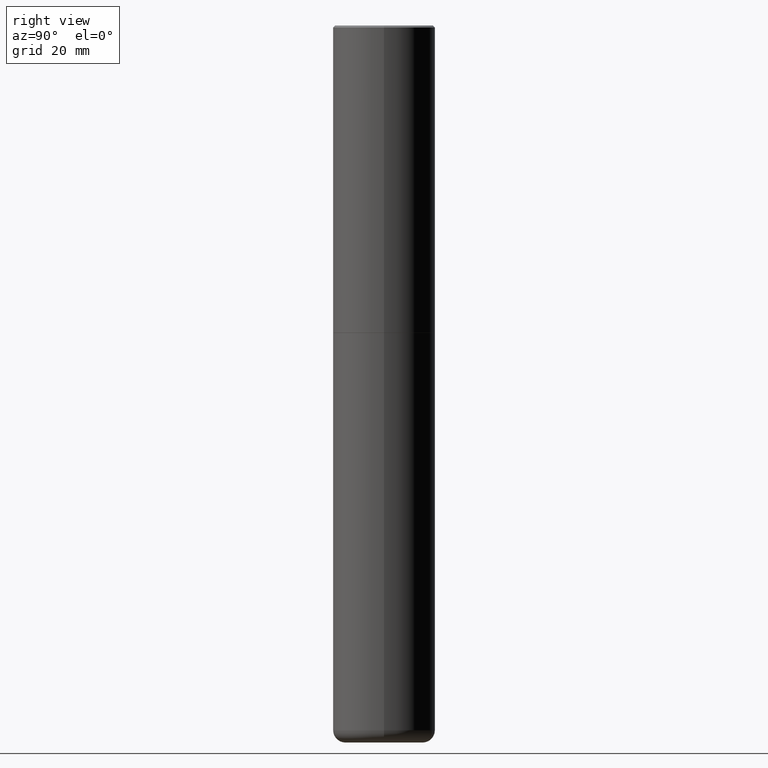
[diagram: clean part render]
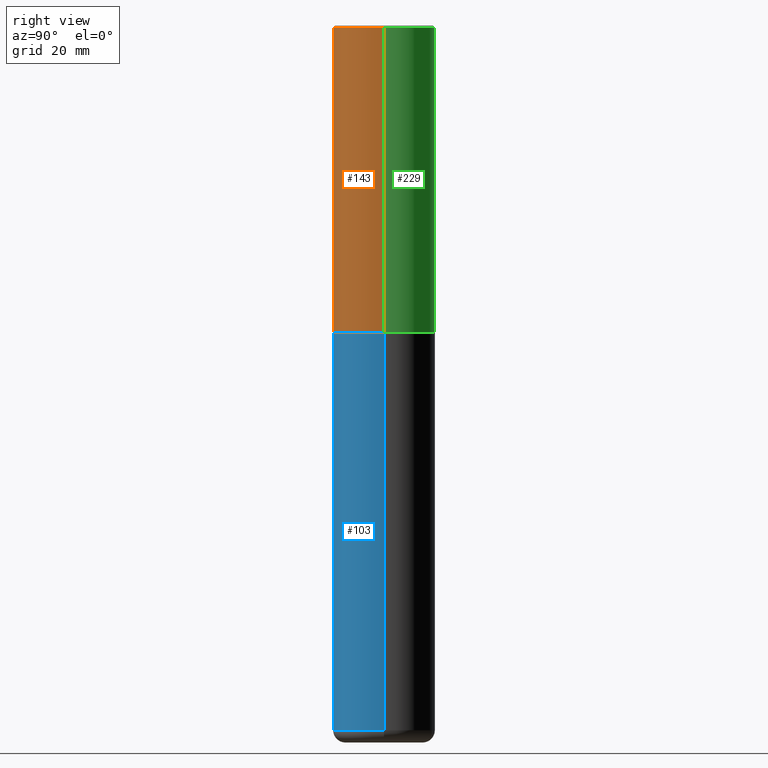
[diagram: same view with three faces highlighted in distinct colors, each labeled with its STEP entity id]
A machine part, right view with three faces highlighted in distinct colors.
Their STEP definitions:

[orange] entity #143 — the highlighted cylindrical surface (partial cylindrical patch) has radius 12.7 mm, axis along (-0, 0, 1).
#3 = FACE_OUTER_BOUND ( 'NONE', #13, .T. ) ;
#13 = EDGE_LOOP ( 'NONE', ( #282, #311, #377, #196 ) ) ;
#23 = CARTESIAN_POINT ( 'NONE',  ( -0.5000000000000001110, 3.552713678800501718E-15, -2.459467545127453732E-29 ) ) ;
#37 = CARTESIAN_POINT ( 'NONE',  ( 0.5000000000000000000, -3.500078625662629079E-15, -0.02000000000000010797 ) ) ;
#43 = DIRECTION ( 'NONE',  ( -2.445468806185136597E-29, 3.491481338843145583E-15, 1.000000000000000000 ) ) ;
#58 = CARTESIAN_POINT ( 'NONE',  ( -0.5000000000000000000, 3.421651712066270057E-15, -0.02000000000000010797 ) ) ;
#72 = CARTESIAN_POINT ( 'NONE',  ( 4.890937612370299433E-31, -6.982962677686328587E-17, -0.02000000000000010797 ) ) ;
#80 = EDGE_CURVE ( 'NONE', #86, #193, #405, .T. ) ;
#86 = VERTEX_POINT ( 'NONE', #146 ) ;
#100 = DIRECTION ( 'NONE',  ( -2.445468806185136597E-29, 3.491481338843145583E-15, 1.000000000000000000 ) ) ;
#109 = EDGE_CURVE ( 'NONE', #245, #268, #370, .T. ) ;
#115 = DIRECTION ( 'NONE',  ( -2.445468806185136877E-29, 3.491481338843145188E-15, 1.000000000000000000 ) ) ;
#141 = CYLINDRICAL_SURFACE ( 'NONE', #328, 0.5000000000000001110 ) ;
#143 = ADVANCED_FACE ( 'NONE', ( #3 ), #141, .T. ) ;
#146 = CARTESIAN_POINT ( 'NONE',  ( 0.5000000000000003331, -1.396243387403372828E-14, -2.999000000000000110 ) ) ;
#150 = AXIS2_PLACEMENT_3D ( 'NONE', #390, #100, #211 ) ;
#163 = EDGE_CURVE ( 'NONE', #268, #193, #352, .T. ) ;
#164 = DIRECTION ( 'NONE',  ( -2.445468806185136877E-29, 3.491481338843145188E-15, 1.000000000000000000 ) ) ;
#182 = DIRECTION ( 'NONE',  ( 1.000000000000000000, -6.982962677686266711E-15, 0.000000000000000000 ) ) ;
#187 = CARTESIAN_POINT ( 'NONE',  ( 0.5000000000000001110, -3.491481338843134539E-15, 2.438088387897968457E-29 ) ) ;
#193 = VERTEX_POINT ( 'NONE', #37 ) ;
#196 = ORIENTED_EDGE ( 'NONE', *, *, #163, .F. ) ;
#209 = AXIS2_PLACEMENT_3D ( 'NONE', #72, #43, #182 ) ;
#211 = DIRECTION ( 'NONE',  ( 1.000000000000000000, -6.982962677686265922E-15, 0.000000000000000000 ) ) ;
#212 = DIRECTION ( 'NONE',  ( -2.445468806185136597E-29, 3.491481338843145583E-15, 1.000000000000000000 ) ) ;
#215 = CARTESIAN_POINT ( 'NONE',  ( 0.000000000000000000, 0.000000000000000000, 0.000000000000000000 ) ) ;
#222 = CIRCLE ( 'NONE', #150, 0.5000000000000003331 ) ;
#239 = EDGE_CURVE ( 'NONE', #245, #86, #222, .T. ) ;
#245 = VERTEX_POINT ( 'NONE', #331 ) ;
#264 = VECTOR ( 'NONE', #164, 39.37007874015748143 ) ;
#268 = VERTEX_POINT ( 'NONE', #58 ) ;
#282 = ORIENTED_EDGE ( 'NONE', *, *, #109, .F. ) ;
#311 = ORIENTED_EDGE ( 'NONE', *, *, #239, .T. ) ;
#328 = AXIS2_PLACEMENT_3D ( 'NONE', #215, #212, #357 ) ;
#331 = CARTESIAN_POINT ( 'NONE',  ( -0.5000000000000003331, -1.717677402183223054E-15, -2.999000000000000110 ) ) ;
#352 = CIRCLE ( 'NONE', #209, 0.5000000000000000000 ) ;
#357 = DIRECTION ( 'NONE',  ( 1.000000000000000000, -6.982962677686267499E-15, 4.876176775795935793E-29 ) ) ;
#360 = VECTOR ( 'NONE', #115, 39.37007874015748143 ) ;
#370 = LINE ( 'NONE', #23, #264 ) ;
#377 = ORIENTED_EDGE ( 'NONE', *, *, #80, .T. ) ;
#390 = CARTESIAN_POINT ( 'NONE',  ( 7.333960949749225308E-29, -1.047095253519059177E-14, -2.999000000000000110 ) ) ;
#405 = LINE ( 'NONE', #187, #360 ) ;

[blue] entity #103 — the highlighted cylindrical surface (partial cylindrical patch) has radius 12.7 mm, axis along (-0, 0, 1).
#6 = DIRECTION ( 'NONE',  ( -2.445468806185136877E-29, 3.491481338843145188E-15, 1.000000000000000000 ) ) ;
#9 = VERTEX_POINT ( 'NONE', #221 ) ;
#12 = LINE ( 'NONE', #154, #198 ) ;
#32 = EDGE_CURVE ( 'NONE', #205, #356, #274, .T. ) ;
#52 = ORIENTED_EDGE ( 'NONE', *, *, #180, .T. ) ;
#64 = DIRECTION ( 'NONE',  ( 1.000000000000000000, -6.982962677686266711E-15, 4.876176775795935793E-29 ) ) ;
#82 = DIRECTION ( 'NONE',  ( -2.445468806185136597E-29, 3.491481338843145583E-15, 1.000000000000000000 ) ) ;
#85 = DIRECTION ( 'NONE',  ( 1.000000000000000000, -6.982962677686269077E-15, 0.000000000000000000 ) ) ;
#89 = ORIENTED_EDGE ( 'NONE', *, *, #272, .F. ) ;
#103 = ADVANCED_FACE ( 'NONE', ( #378 ), #286, .T. ) ;
#108 = ORIENTED_EDGE ( 'NONE', *, *, #32, .T. ) ;
#124 = CARTESIAN_POINT ( 'NONE',  ( 0.000000000000000000, 0.000000000000000000, 0.000000000000000000 ) ) ;
#154 = CARTESIAN_POINT ( 'NONE',  ( -0.5000000000000000000, 3.552713678800500929E-15, -2.459467545127452891E-29 ) ) ;
#174 = CARTESIAN_POINT ( 'NONE',  ( -0.5000000000000000000, -2.046867793244033797E-14, -6.879999999999999893 ) ) ;
#180 = EDGE_CURVE ( 'NONE', #356, #9, #234, .T. ) ;
#198 = VECTOR ( 'NONE', #409, 39.37007874015748143 ) ;
#199 = AXIS2_PLACEMENT_3D ( 'NONE', #124, #228, #64 ) ;
#200 = AXIS2_PLACEMENT_3D ( 'NONE', #279, #399, #346 ) ;
#205 = VERTEX_POINT ( 'NONE', #174 ) ;
#221 = CARTESIAN_POINT ( 'NONE',  ( 0.5000000000000000000, -1.396592535537256813E-14, -2.999999999999999556 ) ) ;
#228 = DIRECTION ( 'NONE',  ( -2.445468806185136597E-29, 3.491481338843145583E-15, 1.000000000000000000 ) ) ;
#234 = LINE ( 'NONE', #297, #386 ) ;
#235 = AXIS2_PLACEMENT_3D ( 'NONE', #368, #82, #85 ) ;
#250 = CARTESIAN_POINT ( 'NONE',  ( -0.5000000000000000000, -1.369520413508463748E-14, -2.999999999999999556 ) ) ;
#272 = EDGE_CURVE ( 'NONE', #205, #278, #12, .T. ) ;
#274 = CIRCLE ( 'NONE', #235, 0.5000000000000001110 ) ;
#278 = VERTEX_POINT ( 'NONE', #250 ) ;
#279 = CARTESIAN_POINT ( 'NONE',  ( 7.336406418555408669E-29, -1.047444401652943478E-14, -2.999999999999999556 ) ) ;
#286 = CYLINDRICAL_SURFACE ( 'NONE', #199, 0.5000000000000000000 ) ;
#297 = CARTESIAN_POINT ( 'NONE',  ( 0.5000000000000000000, -3.491481338843133355E-15, 2.438088387897967896E-29 ) ) ;
#305 = EDGE_LOOP ( 'NONE', ( #89, #108, #52, #340 ) ) ;
#312 = EDGE_CURVE ( 'NONE', #278, #9, #393, .T. ) ;
#340 = ORIENTED_EDGE ( 'NONE', *, *, #312, .F. ) ;
#346 = DIRECTION ( 'NONE',  ( 1.000000000000000000, -6.982962677686266711E-15, 0.000000000000000000 ) ) ;
#356 = VERTEX_POINT ( 'NONE', #407 ) ;
#368 = CARTESIAN_POINT ( 'NONE',  ( 1.682482538655373988E-28, -2.402139161124084205E-14, -6.879999999999999893 ) ) ;
#378 = FACE_OUTER_BOUND ( 'NONE', #305, .T. ) ;
#386 = VECTOR ( 'NONE', #6, 39.37007874015748143 ) ;
#393 = CIRCLE ( 'NONE', #200, 0.5000000000000000000 ) ;
#399 = DIRECTION ( 'NONE',  ( -2.445468806185136597E-29, 3.491481338843145583E-15, 1.000000000000000000 ) ) ;
#407 = CARTESIAN_POINT ( 'NONE',  ( 0.5000000000000000000, -2.751287295008397541E-14, -6.879999999999999893 ) ) ;
#409 = DIRECTION ( 'NONE',  ( -2.445468806185136877E-29, 3.491481338843145188E-15, 1.000000000000000000 ) ) ;

[green] entity #229 — the highlighted cylindrical surface (partial cylindrical patch) has radius 12.7 mm, axis along (-0, 0, 1).
#1 = DIRECTION ( 'NONE',  ( 1.000000000000000000, -6.982962677686267499E-15, 4.876176775795935793E-29 ) ) ;
#5 = EDGE_CURVE ( 'NONE', #193, #268, #314, .T. ) ;
#23 = CARTESIAN_POINT ( 'NONE',  ( -0.5000000000000001110, 3.552713678800501718E-15, -2.459467545127453732E-29 ) ) ;
#37 = CARTESIAN_POINT ( 'NONE',  ( 0.5000000000000000000, -3.500078625662629079E-15, -0.02000000000000010797 ) ) ;
#46 = ORIENTED_EDGE ( 'NONE', *, *, #80, .F. ) ;
#58 = CARTESIAN_POINT ( 'NONE',  ( -0.5000000000000000000, 3.421651712066270057E-15, -0.02000000000000010797 ) ) ;
#76 = ORIENTED_EDGE ( 'NONE', *, *, #5, .F. ) ;
#80 = EDGE_CURVE ( 'NONE', #86, #193, #405, .T. ) ;
#86 = VERTEX_POINT ( 'NONE', #146 ) ;
#93 = AXIS2_PLACEMENT_3D ( 'NONE', #178, #266, #208 ) ;
#109 = EDGE_CURVE ( 'NONE', #245, #268, #370, .T. ) ;
#115 = DIRECTION ( 'NONE',  ( -2.445468806185136877E-29, 3.491481338843145188E-15, 1.000000000000000000 ) ) ;
#136 = CIRCLE ( 'NONE', #93, 0.5000000000000003331 ) ;
#137 = CYLINDRICAL_SURFACE ( 'NONE', #366, 0.5000000000000001110 ) ;
#146 = CARTESIAN_POINT ( 'NONE',  ( 0.5000000000000003331, -1.396243387403372828E-14, -2.999000000000000110 ) ) ;
#164 = DIRECTION ( 'NONE',  ( -2.445468806185136877E-29, 3.491481338843145188E-15, 1.000000000000000000 ) ) ;
#168 = EDGE_CURVE ( 'NONE', #86, #245, #136, .T. ) ;
#178 = CARTESIAN_POINT ( 'NONE',  ( 7.333960949749225308E-29, -1.047095253519059177E-14, -2.999000000000000110 ) ) ;
#187 = CARTESIAN_POINT ( 'NONE',  ( 0.5000000000000001110, -3.491481338843134539E-15, 2.438088387897968457E-29 ) ) ;
#193 = VERTEX_POINT ( 'NONE', #37 ) ;
#208 = DIRECTION ( 'NONE',  ( 1.000000000000000000, -6.982962677686265922E-15, 0.000000000000000000 ) ) ;
#224 = DIRECTION ( 'NONE',  ( -2.445468806185136597E-29, 3.491481338843145583E-15, 1.000000000000000000 ) ) ;
#229 = ADVANCED_FACE ( 'NONE', ( #294 ), #137, .T. ) ;
#244 = ORIENTED_EDGE ( 'NONE', *, *, #109, .T. ) ;
#245 = VERTEX_POINT ( 'NONE', #331 ) ;
#255 = AXIS2_PLACEMENT_3D ( 'NONE', #397, #224, #345 ) ;
#262 = DIRECTION ( 'NONE',  ( -2.445468806185136597E-29, 3.491481338843145583E-15, 1.000000000000000000 ) ) ;
#264 = VECTOR ( 'NONE', #164, 39.37007874015748143 ) ;
#266 = DIRECTION ( 'NONE',  ( -2.445468806185136597E-29, 3.491481338843145583E-15, 1.000000000000000000 ) ) ;
#268 = VERTEX_POINT ( 'NONE', #58 ) ;
#294 = FACE_OUTER_BOUND ( 'NONE', #325, .T. ) ;
#304 = ORIENTED_EDGE ( 'NONE', *, *, #168, .T. ) ;
#314 = CIRCLE ( 'NONE', #255, 0.5000000000000000000 ) ;
#325 = EDGE_LOOP ( 'NONE', ( #304, #244, #76, #46 ) ) ;
#331 = CARTESIAN_POINT ( 'NONE',  ( -0.5000000000000003331, -1.717677402183223054E-15, -2.999000000000000110 ) ) ;
#345 = DIRECTION ( 'NONE',  ( 1.000000000000000000, -6.982962677686266711E-15, 0.000000000000000000 ) ) ;
#360 = VECTOR ( 'NONE', #115, 39.37007874015748143 ) ;
#361 = CARTESIAN_POINT ( 'NONE',  ( 0.000000000000000000, 0.000000000000000000, 0.000000000000000000 ) ) ;
#366 = AXIS2_PLACEMENT_3D ( 'NONE', #361, #262, #1 ) ;
#370 = LINE ( 'NONE', #23, #264 ) ;
#397 = CARTESIAN_POINT ( 'NONE',  ( 4.890937612370299433E-31, -6.982962677686328587E-17, -0.02000000000000010797 ) ) ;
#405 = LINE ( 'NONE', #187, #360 ) ;